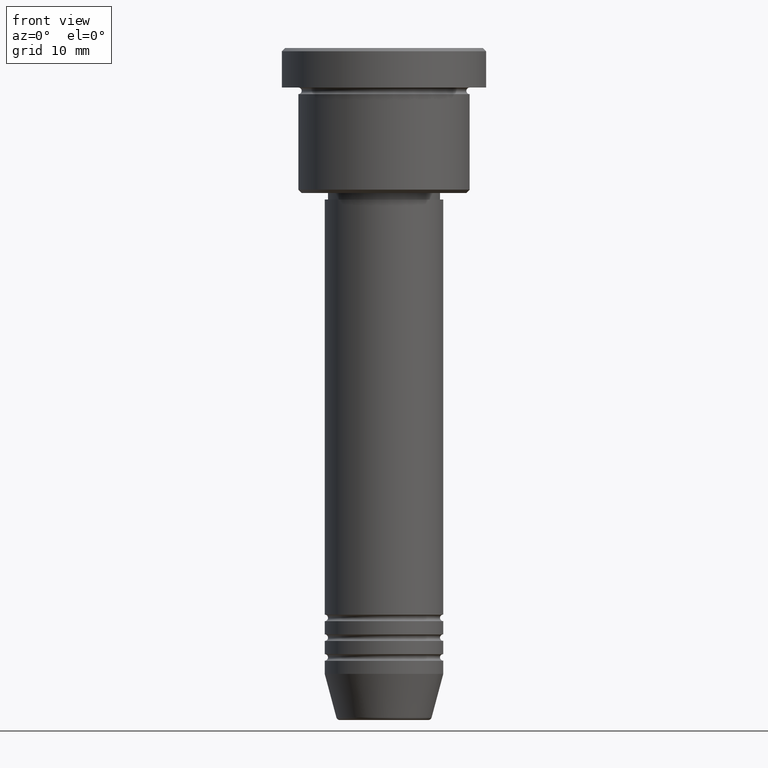
[diagram: clean part render]
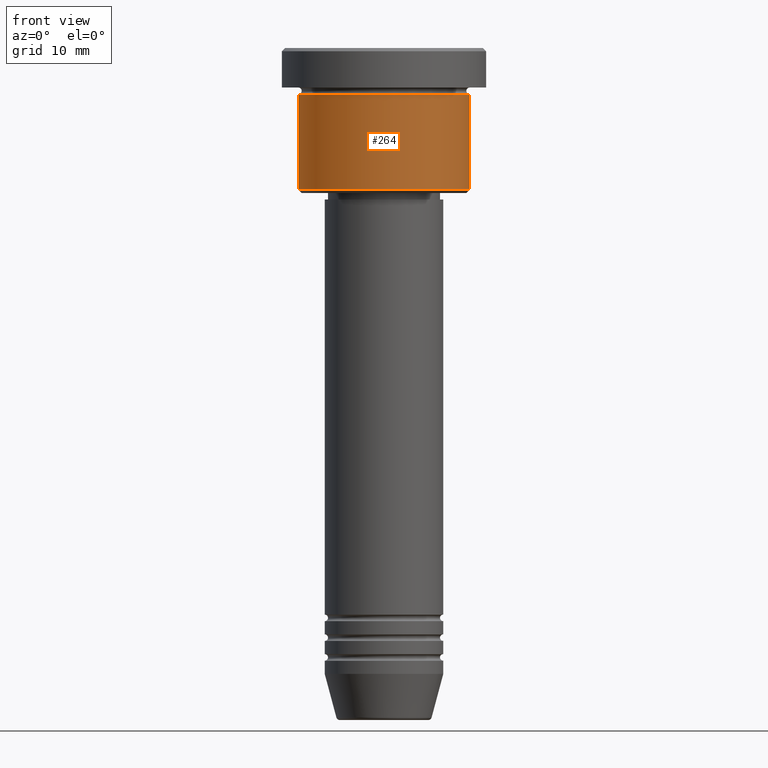
[diagram: same view with one face highlighted and labeled with its STEP entity id]
A machine part, front view. The second image highlights one B-rep face of the part: STEP entity #264.
In plain terms, the highlighted cylindrical surface (partial cylindrical patch) has radius 13 mm, axis along (-0, -0, 1).
Its self-contained STEP definition (entity closure, byte-faithful):
#7 = CARTESIAN_POINT ( 'NONE',  ( 0.000000000000000000, 0.000000000000000000, -21.49999999999998579 ) ) ;
#22 = DIRECTION ( 'NONE',  ( 1.000000000000000000, 0.000000000000000000, 0.000000000000000000 ) ) ;
#89 = CARTESIAN_POINT ( 'NONE',  ( -13.00000000000000000, 1.592040838891559095E-15, 0.000000000000000000 ) ) ;
#95 = CARTESIAN_POINT ( 'NONE',  ( 0.000000000000000000, 0.000000000000000000, -6.999999999999995559 ) ) ;
#114 = CIRCLE ( 'NONE', #1067, 13.00000000000000000 ) ;
#115 = CARTESIAN_POINT ( 'NONE',  ( 0.000000000000000000, 0.000000000000000000, 0.000000000000000000 ) ) ;
#122 = VERTEX_POINT ( 'NONE', #917 ) ;
#139 = LINE ( 'NONE', #864, #337 ) ;
#150 = AXIS2_PLACEMENT_3D ( 'NONE', #115, #384, #749 ) ;
#183 = LINE ( 'NONE', #89, #1106 ) ;
#202 = CARTESIAN_POINT ( 'NONE',  ( -13.00000000000000000, 1.592040838891559095E-15, -6.999999999999995559 ) ) ;
#214 = VERTEX_POINT ( 'NONE', #827 ) ;
#245 = EDGE_LOOP ( 'NONE', ( #479, #490, #263, #1120 ) ) ;
#263 = ORIENTED_EDGE ( 'NONE', *, *, #402, .T. ) ;
#264 = ADVANCED_FACE ( 'NONE', ( #1034 ), #744, .T. ) ;
#271 = DIRECTION ( 'NONE',  ( -0.000000000000000000, -0.000000000000000000, 1.000000000000000000 ) ) ;
#337 = VECTOR ( 'NONE', #961, 1000.000000000000000 ) ;
#384 = DIRECTION ( 'NONE',  ( -0.000000000000000000, -0.000000000000000000, 1.000000000000000000 ) ) ;
#402 = EDGE_CURVE ( 'NONE', #122, #214, #139, .T. ) ;
#479 = ORIENTED_EDGE ( 'NONE', *, *, #1093, .F. ) ;
#490 = ORIENTED_EDGE ( 'NONE', *, *, #1039, .T. ) ;
#563 = DIRECTION ( 'NONE',  ( -0.000000000000000000, -0.000000000000000000, 1.000000000000000000 ) ) ;
#681 = CIRCLE ( 'NONE', #1004, 13.00000000000000000 ) ;
#727 = DIRECTION ( 'NONE',  ( -1.000000000000000000, 0.000000000000000000, 0.000000000000000000 ) ) ;
#744 = CYLINDRICAL_SURFACE ( 'NONE', #150, 13.00000000000000000 ) ;
#749 = DIRECTION ( 'NONE',  ( 1.000000000000000000, 0.000000000000000000, 0.000000000000000000 ) ) ;
#827 = CARTESIAN_POINT ( 'NONE',  ( 13.00000000000000000, 0.000000000000000000, -6.999999999999995559 ) ) ;
#864 = CARTESIAN_POINT ( 'NONE',  ( 13.00000000000000000, 0.000000000000000000, 0.000000000000000000 ) ) ;
#917 = CARTESIAN_POINT ( 'NONE',  ( 13.00000000000000000, 0.000000000000000000, -21.49999999999998579 ) ) ;
#961 = DIRECTION ( 'NONE',  ( -0.000000000000000000, -0.000000000000000000, 1.000000000000000000 ) ) ;
#983 = EDGE_CURVE ( 'NONE', #1040, #214, #114, .T. ) ;
#1004 = AXIS2_PLACEMENT_3D ( 'NONE', #7, #271, #727 ) ;
#1034 = FACE_OUTER_BOUND ( 'NONE', #245, .T. ) ;
#1039 = EDGE_CURVE ( 'NONE', #1090, #122, #681, .T. ) ;
#1040 = VERTEX_POINT ( 'NONE', #202 ) ;
#1067 = AXIS2_PLACEMENT_3D ( 'NONE', #95, #563, #22 ) ;
#1090 = VERTEX_POINT ( 'NONE', #1095 ) ;
#1093 = EDGE_CURVE ( 'NONE', #1090, #1040, #183, .T. ) ;
#1095 = CARTESIAN_POINT ( 'NONE',  ( -13.00000000000000000, 1.592040838891559095E-15, -21.49999999999998579 ) ) ;
#1106 = VECTOR ( 'NONE', #1179, 1000.000000000000000 ) ;
#1120 = ORIENTED_EDGE ( 'NONE', *, *, #983, .F. ) ;
#1179 = DIRECTION ( 'NONE',  ( -0.000000000000000000, -0.000000000000000000, 1.000000000000000000 ) ) ;